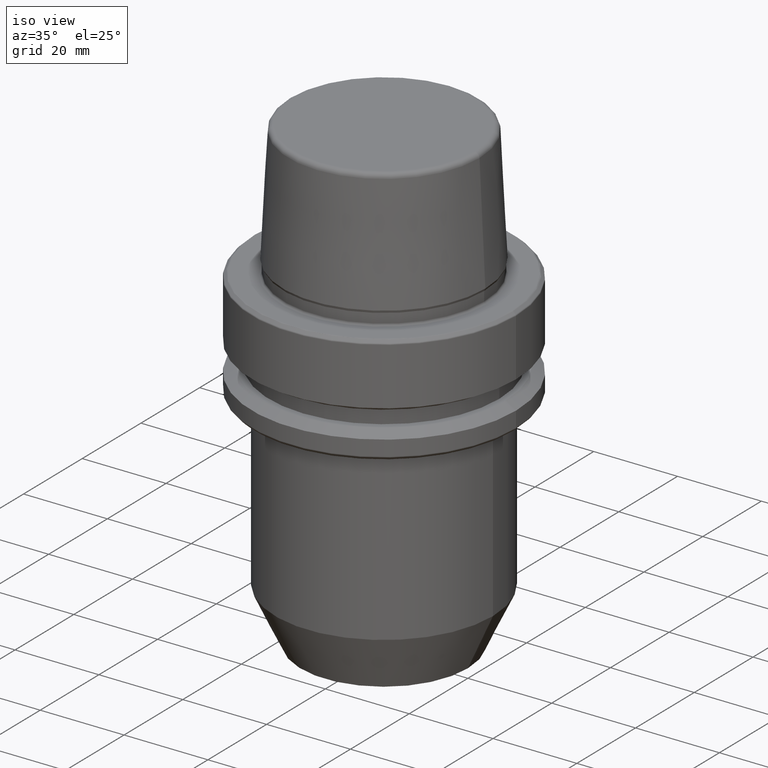
[diagram: clean part render]
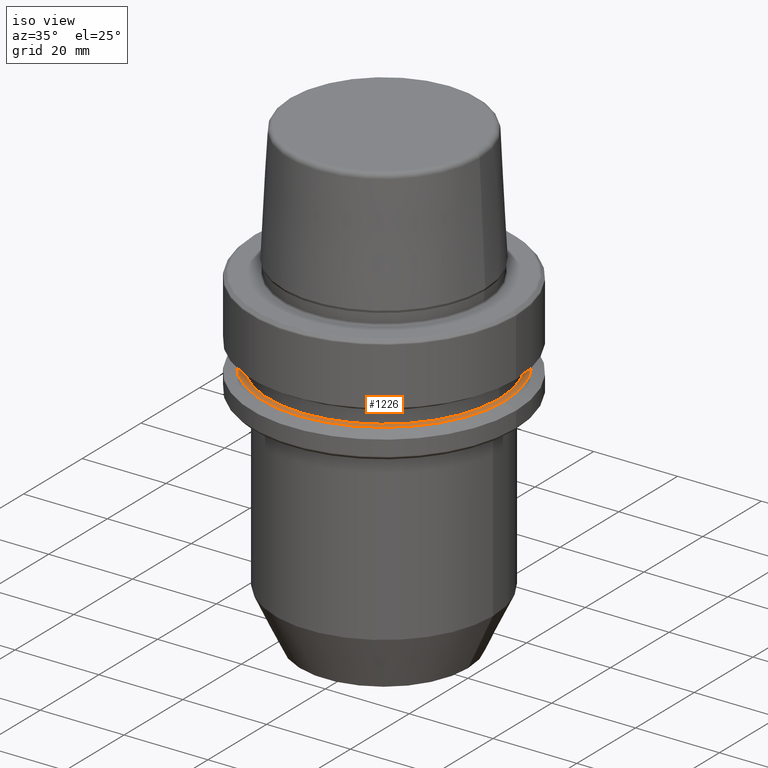
[diagram: same view with one face highlighted and labeled with its STEP entity id]
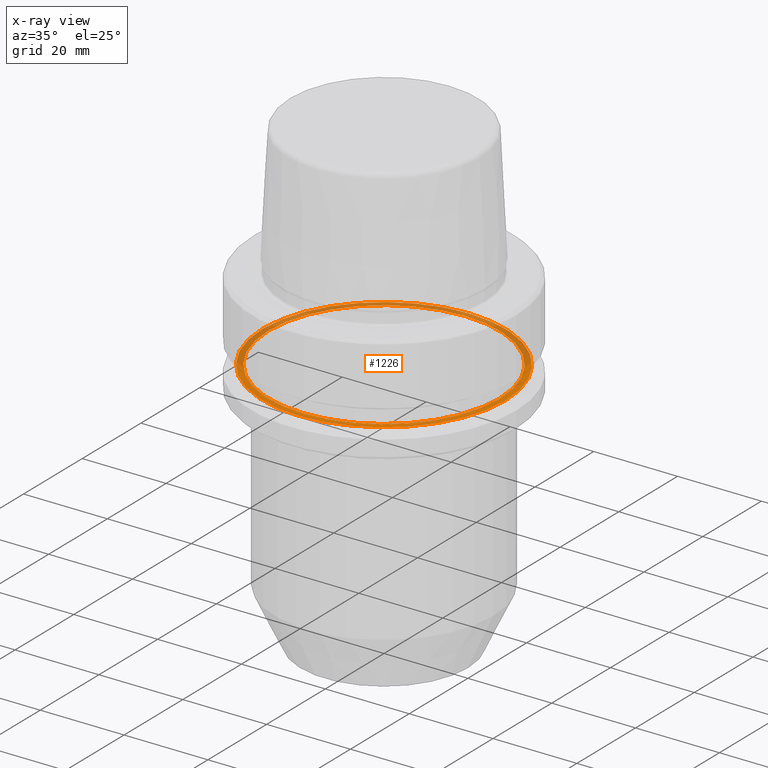
[diagram: x-ray of the same camera — body ghosted, the highlighted face saturated]
A machine part, iso view. The second image highlights one B-rep face of the part: STEP entity #1226.
The next image is the same camera in x-ray: the body ghosted, the highlighted face saturated — about 50% of this face is hidden behind the body in this view.
In plain terms, the highlighted planar face has unit normal (0, 0, -1).
Its self-contained STEP definition (entity closure, byte-faithful):
#23 = CARTESIAN_POINT ( 'NONE',  ( 27.49999999999999600, 0.0000000000000000000, -19.90000000000001600 ) ) ;
#27 = EDGE_CURVE ( 'NONE', #1189, #1060, #83, .T. ) ;
#66 = EDGE_CURVE ( 'NONE', #762, #410, #267, .T. ) ;
#80 = FACE_OUTER_BOUND ( 'NONE', #1234, .T. ) ;
#83 = CIRCLE ( 'NONE', #1082, 28.94089653438085100 ) ;
#94 = AXIS2_PLACEMENT_3D ( 'NONE', #1080, #682, #734 ) ;
#162 = PLANE ( 'NONE',  #94 ) ;
#185 = EDGE_CURVE ( 'NONE', #1060, #1189, #841, .T. ) ;
#267 = CIRCLE ( 'NONE', #1192, 27.49999999999999600 ) ;
#289 = CARTESIAN_POINT ( 'NONE',  ( 0.0000000000000000000, 0.0000000000000000000, -19.90000000000001600 ) ) ;
#299 = CARTESIAN_POINT ( 'NONE',  ( -27.49999999999999600, 3.367778697655220900E-015, -19.90000000000001600 ) ) ;
#314 = AXIS2_PLACEMENT_3D ( 'NONE', #289, #848, #1186 ) ;
#317 = DIRECTION ( 'NONE',  ( 1.000000000000000000, 0.0000000000000000000, 0.0000000000000000000 ) ) ;
#410 = VERTEX_POINT ( 'NONE', #299 ) ;
#485 = DIRECTION ( 'NONE',  ( 1.000000000000000000, 0.0000000000000000000, 0.0000000000000000000 ) ) ;
#494 = CARTESIAN_POINT ( 'NONE',  ( 0.0000000000000000000, 0.0000000000000000000, -19.90000000000001600 ) ) ;
#635 = EDGE_LOOP ( 'NONE', ( #1247, #803 ) ) ;
#682 = DIRECTION ( 'NONE',  ( 0.0000000000000000000, 0.0000000000000000000, -1.000000000000000000 ) ) ;
#702 = CARTESIAN_POINT ( 'NONE',  ( 0.0000000000000000000, 0.0000000000000000000, -19.90000000000001600 ) ) ;
#734 = DIRECTION ( 'NONE',  ( -1.000000000000000000, 0.0000000000000000000, -0.0000000000000000000 ) ) ;
#762 = VERTEX_POINT ( 'NONE', #23 ) ;
#767 = CIRCLE ( 'NONE', #314, 27.49999999999999600 ) ;
#787 = ORIENTED_EDGE ( 'NONE', *, *, #185, .T. ) ;
#792 = DIRECTION ( 'NONE',  ( -0.0000000000000000000, -0.0000000000000000000, 1.000000000000000000 ) ) ;
#803 = ORIENTED_EDGE ( 'NONE', *, *, #1056, .F. ) ;
#822 = CARTESIAN_POINT ( 'NONE',  ( -28.94089653438085100, 0.0000000000000000000, -19.90000000000001600 ) ) ;
#837 = DIRECTION ( 'NONE',  ( 1.000000000000000000, 0.0000000000000000000, 0.0000000000000000000 ) ) ;
#841 = CIRCLE ( 'NONE', #931, 28.94089653438085100 ) ;
#848 = DIRECTION ( 'NONE',  ( -0.0000000000000000000, -0.0000000000000000000, 1.000000000000000000 ) ) ;
#884 = DIRECTION ( 'NONE',  ( -0.0000000000000000000, -0.0000000000000000000, 1.000000000000000000 ) ) ;
#906 = ORIENTED_EDGE ( 'NONE', *, *, #27, .T. ) ;
#931 = AXIS2_PLACEMENT_3D ( 'NONE', #494, #884, #837 ) ;
#935 = CARTESIAN_POINT ( 'NONE',  ( 28.94089653438085100, 3.700937523921292900E-015, -19.90000000000001600 ) ) ;
#959 = CARTESIAN_POINT ( 'NONE',  ( 0.0000000000000000000, 0.0000000000000000000, -19.90000000000001600 ) ) ;
#1056 = EDGE_CURVE ( 'NONE', #410, #762, #767, .T. ) ;
#1060 = VERTEX_POINT ( 'NONE', #935 ) ;
#1080 = CARTESIAN_POINT ( 'NONE',  ( 0.0000000000000000000, 27.49999999999999600, -19.90000000000000900 ) ) ;
#1082 = AXIS2_PLACEMENT_3D ( 'NONE', #959, #1141, #485 ) ;
#1141 = DIRECTION ( 'NONE',  ( -0.0000000000000000000, -0.0000000000000000000, 1.000000000000000000 ) ) ;
#1180 = FACE_BOUND ( 'NONE', #635, .T. ) ;
#1186 = DIRECTION ( 'NONE',  ( 1.000000000000000000, 0.0000000000000000000, 0.0000000000000000000 ) ) ;
#1189 = VERTEX_POINT ( 'NONE', #822 ) ;
#1192 = AXIS2_PLACEMENT_3D ( 'NONE', #702, #792, #317 ) ;
#1226 = ADVANCED_FACE ( 'NONE', ( #1180, #80 ), #162, .F. ) ;
#1234 = EDGE_LOOP ( 'NONE', ( #906, #787 ) ) ;
#1247 = ORIENTED_EDGE ( 'NONE', *, *, #66, .F. ) ;